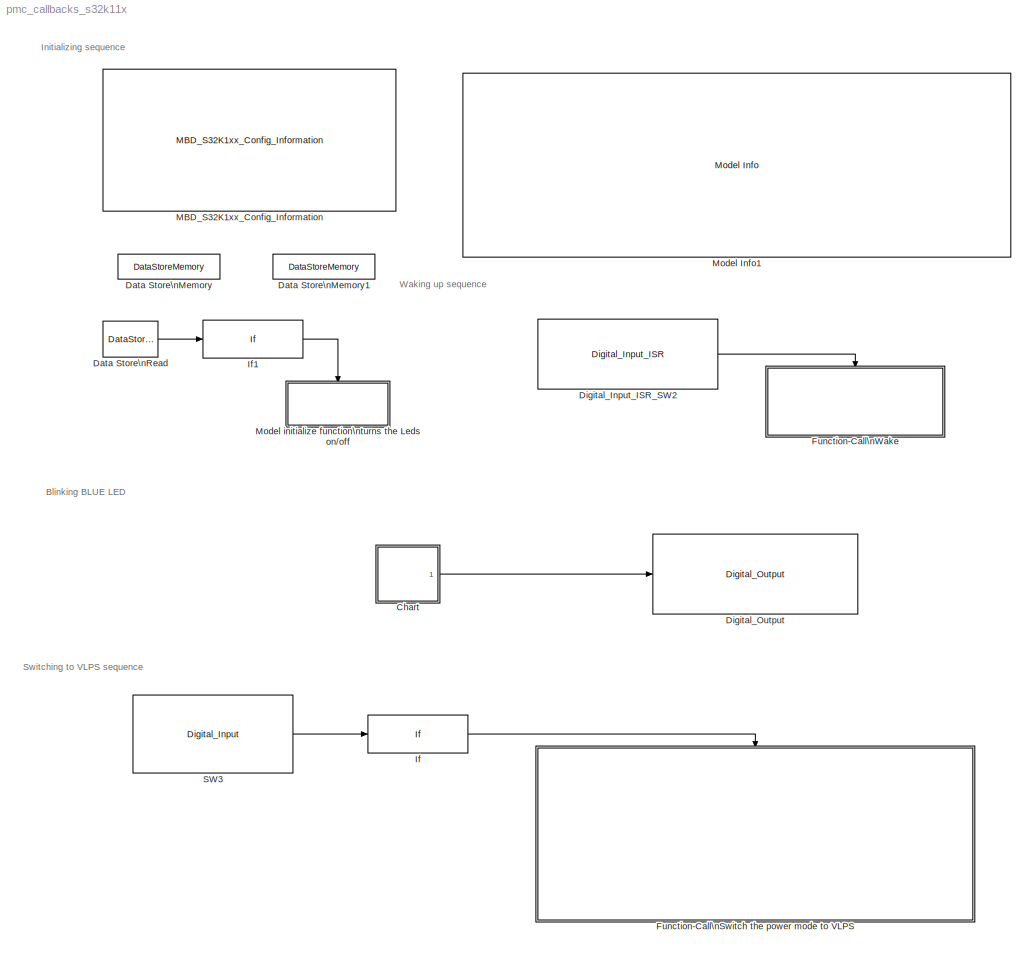
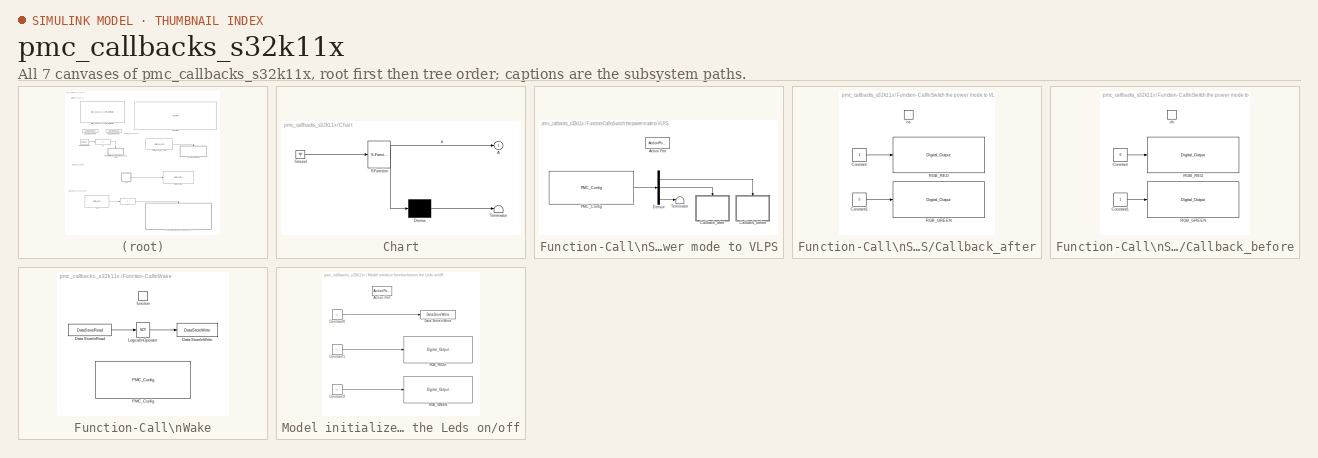
[diagram: thumbnail index - all 7 canvases of the model, root first then tree order]
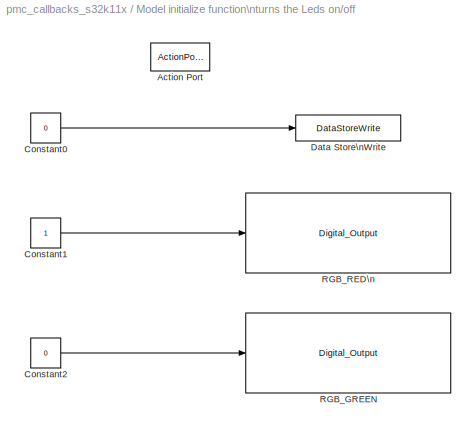
MODEL pmc_callbacks_s32k11x
KIND model
CONFIG InitFcn = mbd_s32k_consistency_checks(bdroot(gcs));
BLOCK [SubSystem] Chart
  ErrorFcn = Stateflow.Translate.translate
  PermitHierarchicalResolution = ExplicitOnly
  Ports = [0, 1]
  RequestExecContextInheritance = off
  SFBlockType = Chart
  SID = 624
  TreatAsAtomicUnit = on
  Variant = off
BLOCK [Outport] Chart/ A
  IconDisplay = Port number
  SID = 624::6
BLOCK [Demux] Chart/ Demux 
  Outputs = 1
  Ports = [1, 1]
  SID = 624::36
BLOCK [Ground] Chart/ Ground 
  SID = 624::38
BLOCK [S-Function] Chart/ SFunction 
  EnableBusSupport = off
  FunctionName = sf_sfun
  PortCounts = [1 2]
  Ports = [1, 2]
  SFcnIsStateOwnerBlock = off
  SFunctionDeploymentMode = off
  SID = 624::35
  Tag = Stateflow S-Function pmc_callbacks_s32k11x 3
BLOCK [Terminator] Chart/ Terminator 
  SID = 624::37
BLOCK [DataStoreMemory] Data Store\nMemory
  DataStoreName = init_flag
  InitialValue = 1
  OutDataTypeStr = boolean
  ReadBeforeWriteMsg = warning
  SID = 531
  ShowAdditionalParam = off
  WriteAfterReadMsg = warning
  WriteAfterWriteMsg = warning
BLOCK [DataStoreMemory] Data Store\nMemory1
  DataStoreName = blue_flag
  InitialValue = 1
  OutDataTypeStr = boolean
  ReadBeforeWriteMsg = warning
  SID = 621
  ShowAdditionalParam = off
  WriteAfterReadMsg = warning
  WriteAfterWriteMsg = warning
BLOCK [DataStoreRead] Data Store\nRead
  DataStoreName = init_flag
  Ports = [0, 1]
  SID = 544
BLOCK [Reference] Digital_Input_ISR_SW2  REF=mbd_s32k1xx_ec_toolbox/GPIO Blocks/Digital_Input_ISR
  Ports = [0, 1]
  SID = 9
  SourceBlock = mbd_s32k1xx_ec_toolbox/GPIO Blocks/Digital_Input_ISR
  SourceType = gpi_s32k_isr
  gpio_pin = PTD3: [PTD3 | Port D I/O]
  irqc = on rising-edge
  prio = 2
BLOCK [Reference] Digital_Output  REF=mbd_s32k1xx_ec_toolbox/GPIO Blocks/Digital_Output
  Ports = [1]
  SID = 625
  SourceBlock = mbd_s32k1xx_ec_toolbox/GPIO Blocks/Digital_Output
  SourceType = gpio_s32k_output
  drive_strength = Low
  gpio_pin = PTE8: [PTE8 | Port E I/O]
  init_val = Low
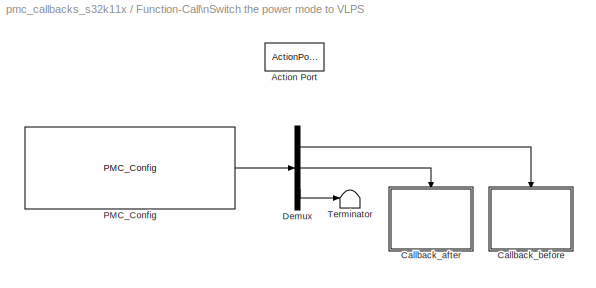
BLOCK [SubSystem] Function-Call\nSwitch the power mode to VLPS
  Ports = [0, 0, 0, 0, 0, 0, 0, 1]
  RequestExecContextInheritance = off
  SID = 11
  TreatAsAtomicUnit = on
  Variant = off
BLOCK [ActionPort] Function-Call\nSwitch the power mode to VLPS/Action Port
  SID = 524
BLOCK [SubSystem] Function-Call\nSwitch the power mode to VLPS/Callback_after
  Ports = [0, 0, 0, 1]
  RequestExecContextInheritance = off
  SID = 605
  Variant = off
BLOCK [Constant] Function-Call\nSwitch the power mode to VLPS/Callback_after/Constant
  OutDataTypeStr = boolean
  SID = 607
BLOCK [Constant] Function-Call\nSwitch the power mode to VLPS/Callback_after/Constant1
  OutDataTypeStr = boolean
  SID = 608
  Value = 0
BLOCK [Reference] Function-Call\nSwitch the power mode to VLPS/Callback_after/RGB_GREEN  REF=mbd_s32k1xx_ec_toolbox/GPIO Blocks/Digital_Output
  Ports = [1]
  SID = 610
  SourceBlock = mbd_s32k1xx_ec_toolbox/GPIO Blocks/Digital_Output
  SourceType = gpio_s32k_output
  drive_strength = Low
  gpio_pin = PTD16: [PTD16 | Port D I/O]
  init_val = Low
BLOCK [Reference] Function-Call\nSwitch the power mode to VLPS/Callback_after/RGB_RED  REF=mbd_s32k1xx_ec_toolbox/GPIO Blocks/Digital_Output
  Ports = [1]
  SID = 611
  SourceBlock = mbd_s32k1xx_ec_toolbox/GPIO Blocks/Digital_Output
  SourceType = gpio_s32k_output
  drive_strength = Low
  gpio_pin = PTD15: [PTD15 | Port D I/O]
  init_val = Low
BLOCK [TriggerPort] Function-Call\nSwitch the power mode to VLPS/Callback_after/ca
  Ports = []
  SID = 606
  StatesWhenEnabling = held
  TriggerType = function-call
  VariantControl = Variant
BLOCK [SubSystem] Function-Call\nSwitch the power mode to VLPS/Callback_before
  Ports = [0, 0, 0, 1]
  RequestExecContextInheritance = off
  SID = 587
  Variant = off
BLOCK [Constant] Function-Call\nSwitch the power mode to VLPS/Callback_before/Constant
  OutDataTypeStr = boolean
  SID = 589
  Value = 0
BLOCK [Constant] Function-Call\nSwitch the power mode to VLPS/Callback_before/Constant1
  OutDataTypeStr = boolean
  SID = 590
BLOCK [Reference] Function-Call\nSwitch the power mode to VLPS/Callback_before/RGB_GREEN  REF=mbd_s32k1xx_ec_toolbox/GPIO Blocks/Digital_Output
  Ports = [1]
  SID = 592
  SourceBlock = mbd_s32k1xx_ec_toolbox/GPIO Blocks/Digital_Output
  SourceType = gpio_s32k_output
  drive_strength = Low
  gpio_pin = PTD16: [PTD16 | Port D I/O]
  init_val = Low
BLOCK [Reference] Function-Call\nSwitch the power mode to VLPS/Callback_before/RGB_RED  REF=mbd_s32k1xx_ec_toolbox/GPIO Blocks/Digital_Output
  Ports = [1]
  SID = 593
  SourceBlock = mbd_s32k1xx_ec_toolbox/GPIO Blocks/Digital_Output
  SourceType = gpio_s32k_output
  drive_strength = Low
  gpio_pin = PTD15: [PTD15 | Port D I/O]
  init_val = Low
BLOCK [TriggerPort] Function-Call\nSwitch the power mode to VLPS/Callback_before/cb
  Ports = []
  SID = 595
  StatesWhenEnabling = held
  TriggerType = function-call
  VariantControl = Variant
BLOCK [Demux] Function-Call\nSwitch the power mode to VLPS/Demux
  DisplayOption = bar
  Outputs = 3
  Ports = [1, 3]
  SID = 570
BLOCK [Reference] Function-Call\nSwitch the power mode to VLPS/PMC_Config  REF=mbd_s32k1xx_ec_toolbox/Core and System Blocks/PMC Blocks/PMC_Config
  Ports = [0, 1]
  SID = 631
  SourceBlock = mbd_s32k1xx_ec_toolbox/Core and System Blocks/PMC Blocks/PMC_Config
  SourceType = pmc_s32k_config
  callback_after = on
  callback_before = on
  callback_before_after = off
  power_mode = Very Low Power Stop (VLPS)
  show_adv_opts = on
  sleep_on_exit = off
BLOCK [Terminator] Function-Call\nSwitch the power mode to VLPS/Terminator
  SID = 622
BLOCK [SubSystem] Function-Call\nWake
  Ports = [0, 0, 0, 1]
  RequestExecContextInheritance = off
  SID = 19
  TreatAsAtomicUnit = on
  Variant = off
BLOCK [DataStoreRead] Function-Call\nWake/Data Store\nRead
  DataStoreName = blue_flag
  Ports = [0, 1]
  SID = 526
BLOCK [DataStoreWrite] Function-Call\nWake/Data Store\nWrite
  DataStoreName = blue_flag
  Ports = [1]
  SID = 527
BLOCK [Logic] Function-Call\nWake/Logical\nOperator
  AllPortsSameDT = off
  Operator = NOT
  OutDataTypeStr = boolean
  Ports = [1, 1]
  SID = 623
BLOCK [Reference] Function-Call\nWake/PMC_Config  REF=mbd_s32k1xx_ec_toolbox/Core and System Blocks/PMC Blocks/PMC_Config
  Ports = []
  SID = 632
  SourceBlock = mbd_s32k1xx_ec_toolbox/Core and System Blocks/PMC Blocks/PMC_Config
  SourceType = pmc_s32k_config
  callback_after = off
  callback_before = off
  callback_before_after = off
  power_mode = Normal Operating (RUN)
  show_adv_opts = off
  sleep_on_exit = off
BLOCK [TriggerPort] Function-Call\nWake/function
  Ports = []
  SID = 20
  StatesWhenEnabling = held
  TriggerType = function-call
  VariantControl = Variant
BLOCK [If] If
  IfExpression = u1 == 1
  Ports = [1, 1]
  SID = 506
  ShowElse = off
BLOCK [If] If1
  IfExpression = u1 == 1
  Ports = [1, 1]
  SID = 542
  ShowElse = off
BLOCK [Reference] MBD_S32K1xx_Config_Information  REF=mbd_s32k1xx_ec_toolbox/MBD_S32K1xx_Config_Information
  ADC_PcrCheckEnDis = on
  AMMCLIB_PcrCheckEnDis = on
  CMP_PcrCheckEnDis = on
  CSEc_PcrCheckEnDis = on
  ConfigParams_PcrCheckEnDis = on
  FM_PcrCheckEnDis = on
  FTM_Dual_Edge_Inputs_PcrCheckEnDis = on
  FTM_Hall_Sensor_Inputs_PcrCheckEnDis = on
  FTM_Input_Edge_Inputs_PcrCheckEnDis = on
  FTM_PWM_PcrCheckEnDis = on
  FTM_Quadrature_Inputs_PcrCheckEnDis = on
  FlexCAN_PcrCheckEnDis = on
  FlexIO_PcrCheckEnDis = on
  GPIO_InputPcrCheckEnDis = on
  GPIO_OutputPcrCheckEnDis = on
  LIN_PcrCheckEnDis = on
  LPI2C_PcrCheckEnDis = on
  LPSPI_PcrCheckEnDis = on
  LPTMR_PcrCheckEnDis = on
  LPUART_PcrCheckEnDis = on
  ModelRef_PcrCheckEnDis = on
  PDB0_PcrCheckEnDis = on
  PIT_PcrCheckEnDis = on
  Ports = []
  Profile_PcrCheckEnDis = on
  RTC_PcrCheckEnDis = on
  SBC_PcrCheckEnDis = on
  SID = 633
  SourceBlock = mbd_s32k1xx_ec_toolbox/MBD_S32K1xx_Config_Information
  SourceType = MBDTBX_EC_S32K
  WDOG_PcrCheckEnDis = on
  config_params = []
  disp_str = Target : S32K144-64KB_SRAM\nPackage : 100-pin\nSystem clock : 80 MHz\nXTAL clock : External 8 MHz\nCompiler : IAR\nTarget Type : FLASH\nDownload Code after build : off\nStep Tick Interrupt Priority : 15
  ds_import_enable = on
  eDMA_PcrCheckEnDis = on
  gcc_target_assemble_opts = -mcpu=cortex-m0plus -mthumb -g
  gcc_target_compile_opts = -mcpu=cortex-m0plus -mthumb -O1 -g -gstrict-dwarf
  gcc_target_default_lcf = on
  gcc_target_link_opts = -mcpu=cortex-m0plus -mthumb
  gcc_target_user_lcf = S32K116_17_flash.ld
  ghs_target_assemble_opts = -mcpu=cortexm0plus -mthumb -fsoft --gnu_asm
  ghs_target_compile_opts = -mcpu=cortexm0plus -mthumb -fsoft -Ogeneral -Wundef -Wimplicit-int -Wshadow -Wtrigraphs --no_commons --gnu_asm -gnu99 -gdwarf-2 -G
  ghs_target_default_lcf = on
  ghs_target_link_opts = -mcpu=cortexm0plus -mthumb -fsoft
  ghs_target_user_lcf = S32K116_17_flash.ld
  iar_target_assemble_opts = --thumb
  iar_target_compile_opts = --thumb -Ol -e --debug --dlib_config normal
  iar_target_default_lcf = on
  iar_target_link_opts = --no_exceptions --vfe --inline
  iar_target_user_lcf = S32K116_17_flash.icf
  mbdt_ver = 0
  mcu_steptick_prio = 3
  mcu_steptick_timer = LPIT Channel 0
  mcu_system_clock_freq = 40
  mcu_target_name = S32K116
  mcu_target_package = 48-LQFP
  mcu_target_sram_size = 17KB
  mcu_xtal_freq = External 40
  pil_download_enable = off
  pil_download_rate = 57600
  pil_opensda_drive = Custom
  pil_opensda_drive_custom = D
  pil_uart_instance = 0
  pil_uart_rx = PTB0: [LPUART0_RX | Receive]
  pil_uart_tx = PTB1: [LPUART0_TX | Transmit]
  rbl_com_port = Custom
  rbl_com_port_custom = COM1
  rbl_download_enable = on
  rbl_download_interface = OpenSDA
  rbl_restart_request = off
  rbl_start_delay = 5000
  target_compiler = GCC
  target_memory = FLASH
BLOCK [Reference] Model Info1  REF=simulink/Model-Wide\nUtilities/Model Info
  DisplayStringWithTags = Model Name: %<ModelName>\n\nDescription: %<Description>
  Frame = off
  HorizontalTextAlignment = Left
  LeftAlignmentValue = 0.02
  MaskDisplayString = Model Name: pmc_callbacks_s32k11x\\n\\nDescription: This model demonstrates the \"Power Management\" functionality by setting the processor to run in the Very \\nlow power stop (VLSP) mode and calling a callback before entering the VLPS mode and another callback after\\nexits the power mode. \\n\\nValidation: When the processor boots up, the RGB led lights up green and the processor runs in the RU...<+671ch>
  Ports = []
  SID = 558
  SourceBlock = simulink/Model-Wide\nUtilities/Model Info
  SourceProductBaseCode = SL
  SourceProductName = Simulink
  SourceType = CMBlock
BLOCK [SubSystem] Model initialize function\nturns the Leds on//off
  Ports = [0, 0, 0, 0, 0, 0, 0, 1]
  RequestExecContextInheritance = off
  SID = 532
  TreatAsAtomicUnit = on
  Variant = off
BLOCK [ActionPort] Model initialize function\nturns the Leds on//off/Action Port
  SID = 533
BLOCK [Constant] Model initialize function\nturns the Leds on//off/Constant0
  OutDataTypeStr = boolean
  SID = 546
  Value = 0
BLOCK [Constant] Model initialize function\nturns the Leds on//off/Constant1
  OutDataTypeStr = boolean
  SID = 535
BLOCK [Constant] Model initialize function\nturns the Leds on//off/Constant2
  OutDataTypeStr = boolean
  SID = 551
  Value = 0
BLOCK [DataStoreWrite] Model initialize function\nturns the Leds on//off/Data Store\nWrite
  DataStoreName = init_flag
  Ports = [1]
  SID = 545
BLOCK [Reference] Model initialize function\nturns the Leds on//off/RGB_GREEN  REF=mbd_s32k1xx_ec_toolbox/GPIO Blocks/Digital_Output
  Ports = [1]
  SID = 540
  SourceBlock = mbd_s32k1xx_ec_toolbox/GPIO Blocks/Digital_Output
  SourceType = gpio_s32k_output
  drive_strength = Low
  gpio_pin = PTD16: [PTD16 | Port D I/O]
  init_val = Low
BLOCK [Reference] Model initialize function\nturns the Leds on//off/RGB_RED\n  REF=mbd_s32k1xx_ec_toolbox/GPIO Blocks/Digital_Output
  Ports = [1]
  SID = 541
  SourceBlock = mbd_s32k1xx_ec_toolbox/GPIO Blocks/Digital_Output
  SourceType = gpio_s32k_output
  drive_strength = Low
  gpio_pin = PTD15: [PTD15 | Port D I/O]
  init_val = Low
BLOCK [Reference] SW3  REF=mbd_s32k1xx_ec_toolbox/GPIO Blocks/Digital_Input
  Ports = [0, 1]
  SID = 40
  SourceBlock = mbd_s32k1xx_ec_toolbox/GPIO Blocks/Digital_Input
  SourceType = gpio_s32k_input
  gpio_pin = PTD5: [PTD5 | Port D I/O]
  passive_filter = off
  pull_resistor = None
ANNOTATION (root): Blinking BLUE LED
ANNOTATION (root): Initializing sequence
ANNOTATION (root): Switching to VLPS sequence
ANNOTATION (root): Waking up sequence
LINE Chart/ Demux :1 -> Chart/ Terminator :1
LINE Chart/ Ground :1 -> Chart/ SFunction :1
LINE Chart/ SFunction :1 -> Chart/ Demux :1
LINE Chart/ SFunction :2 -> Chart/ A:1
LINE Chart:1 -> Digital_Output:1
LINE Data Store\nRead:1 -> If1:1
LINE Digital_Input_ISR_SW2:1 -> Function-Call\nWake:trigger
LINE Function-Call\nSwitch the power mode to VLPS/Callback_after/Constant1:1 -> Function-Call\nSwitch the power mode to VLPS/Callback_after/RGB_GREEN:1
LINE Function-Call\nSwitch the power mode to VLPS/Callback_after/Constant:1 -> Function-Call\nSwitch the power mode to VLPS/Callback_after/RGB_RED:1
LINE Function-Call\nSwitch the power mode to VLPS/Callback_before/Constant1:1 -> Function-Call\nSwitch the power mode to VLPS/Callback_before/RGB_GREEN:1
LINE Function-Call\nSwitch the power mode to VLPS/Callback_before/Constant:1 -> Function-Call\nSwitch the power mode to VLPS/Callback_before/RGB_RED:1
LINE Function-Call\nSwitch the power mode to VLPS/Demux:1 -> Function-Call\nSwitch the power mode to VLPS/Callback_before:trigger
LINE Function-Call\nSwitch the power mode to VLPS/Demux:2 -> Function-Call\nSwitch the power mode to VLPS/Callback_after:trigger
LINE Function-Call\nSwitch the power mode to VLPS/Demux:3 -> Function-Call\nSwitch the power mode to VLPS/Terminator:1
LINE Function-Call\nSwitch the power mode to VLPS/PMC_Config:1 -> Function-Call\nSwitch the power mode to VLPS/Demux:1
LINE Function-Call\nWake/Data Store\nRead:1 -> Function-Call\nWake/Logical\nOperator:1
LINE Function-Call\nWake/Logical\nOperator:1 -> Function-Call\nWake/Data Store\nWrite:1
LINE If1:1 -> Model initialize function\nturns the Leds on//off:ifaction
LINE If:1 -> Function-Call\nSwitch the power mode to VLPS:ifaction
LINE Model initialize function\nturns the Leds on//off/Constant0:1 -> Model initialize function\nturns the Leds on//off/Data Store\nWrite:1
LINE Model initialize function\nturns the Leds on//off/Constant1:1 -> Model initialize function\nturns the Leds on//off/RGB_RED\n:1
LINE Model initialize function\nturns the Leds on//off/Constant2:1 -> Model initialize function\nturns the Leds on//off/RGB_GREEN:1
LINE SW3:1 -> If:1
CHART Chart states=2 transitions=3
  STATE_LABEL 'A'
  STATE_LABEL 'A1'
